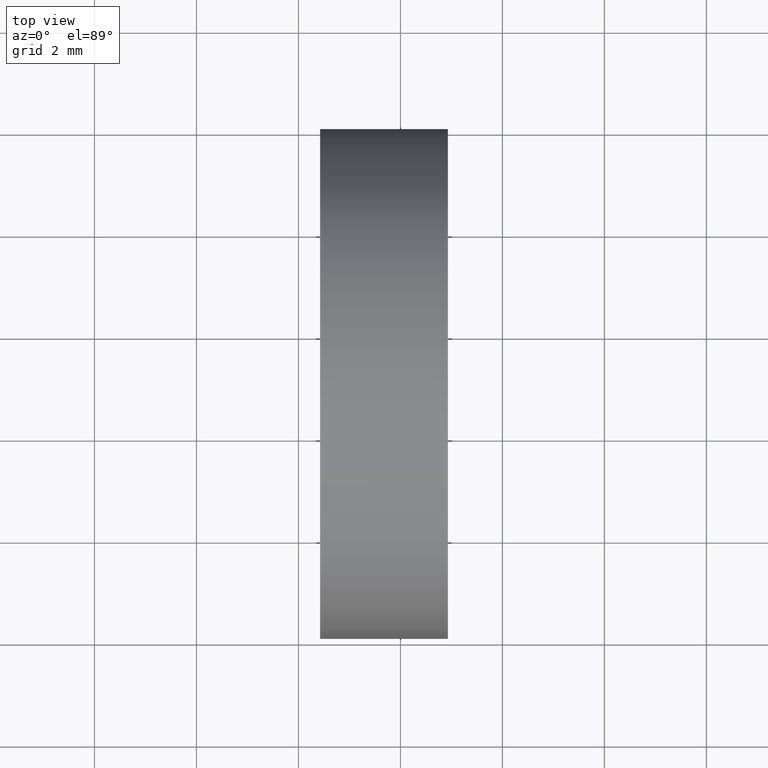
[diagram: clean part render]
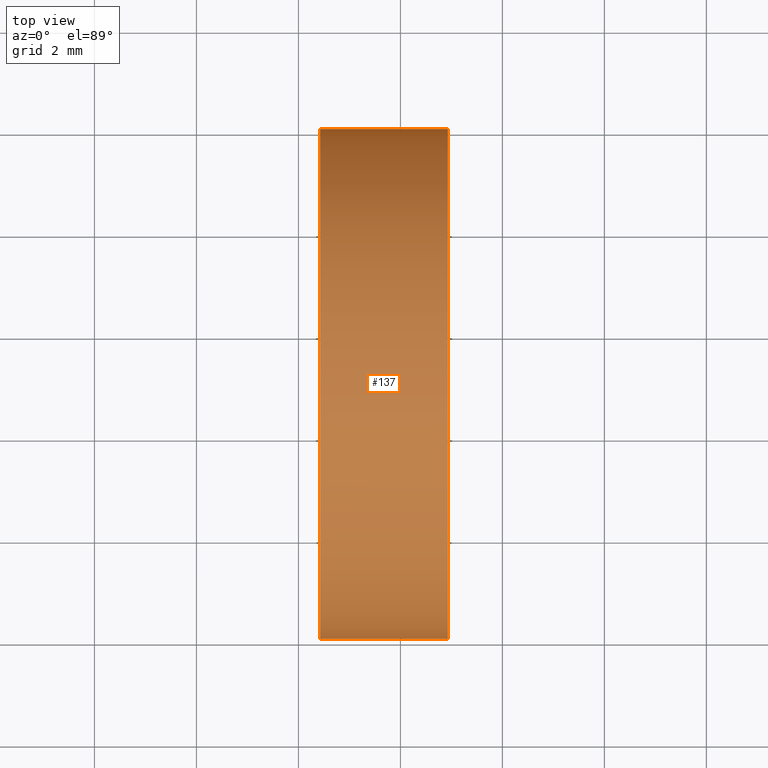
[diagram: same view with one face highlighted and labeled with its STEP entity id]
A machine part, top view. The second image highlights one B-rep face of the part: STEP entity #137.
In plain terms, the highlighted cylindrical surface (partial cylindrical patch) has radius 5 mm, axis along (-1, 0, -0).
Its self-contained STEP definition (entity closure, byte-faithful):
#4 = DIRECTION ( 'NONE',  ( 0.0000000000000000000, -1.000000000000000000, 0.0000000000000000000 ) ) ;
#6 = DIRECTION ( 'NONE',  ( 0.0000000000000000000, -1.000000000000000000, 0.0000000000000000000 ) ) ;
#8 = CARTESIAN_POINT ( 'NONE',  ( 21.50597511808246100, 18.03112609140304200, 6.123233995736768300E-016 ) ) ;
#13 = CIRCLE ( 'NONE', #61, 5.000000000000000900 ) ;
#14 = VERTEX_POINT ( 'NONE', #17 ) ;
#17 = CARTESIAN_POINT ( 'NONE',  ( 24.93179112749126200, 8.031126091403027800, -6.123233995736775200E-016 ) ) ;
#21 = DIRECTION ( 'NONE',  ( 0.0000000000000000000, -1.000000000000000000, 0.0000000000000000000 ) ) ;
#25 = VERTEX_POINT ( 'NONE', #150 ) ;
#28 = CARTESIAN_POINT ( 'NONE',  ( 21.50597511808246100, 13.03112609140304200, 0.0000000000000000000 ) ) ;
#33 = CARTESIAN_POINT ( 'NONE',  ( 22.42423205362066000, 8.031126091403040200, 0.0000000000000000000 ) ) ;
#39 = VECTOR ( 'NONE', #78, 1000.000000000000000 ) ;
#41 = EDGE_LOOP ( 'NONE', ( #57, #165, #120, #117 ) ) ;
#42 = CARTESIAN_POINT ( 'NONE',  ( 21.50597511808246100, 8.031126091403040200, 0.0000000000000000000 ) ) ;
#43 = AXIS2_PLACEMENT_3D ( 'NONE', #156, #102, #6 ) ;
#54 = DIRECTION ( 'NONE',  ( -1.000000000000000000, 3.159171411554934600E-016, -0.0000000000000000000 ) ) ;
#57 = ORIENTED_EDGE ( 'NONE', *, *, #84, .T. ) ;
#61 = AXIS2_PLACEMENT_3D ( 'NONE', #90, #54, #4 ) ;
#63 = CIRCLE ( 'NONE', #43, 5.000000000000002700 ) ;
#66 = DIRECTION ( 'NONE',  ( -1.000000000000000000, 3.159171411554934600E-016, -0.0000000000000000000 ) ) ;
#78 = DIRECTION ( 'NONE',  ( -1.000000000000000000, 3.159171411554934600E-016, -0.0000000000000000000 ) ) ;
#79 = CARTESIAN_POINT ( 'NONE',  ( 22.42423205362066000, 18.03112609140304200, 6.123233995736768300E-016 ) ) ;
#84 = EDGE_CURVE ( 'NONE', #14, #25, #63, .T. ) ;
#85 = VERTEX_POINT ( 'NONE', #33 ) ;
#86 = DIRECTION ( 'NONE',  ( -1.000000000000000000, 3.159171411554934600E-016, -0.0000000000000000000 ) ) ;
#90 = CARTESIAN_POINT ( 'NONE',  ( 22.42423205362066000, 13.03112609140304200, 0.0000000000000000000 ) ) ;
#98 = CYLINDRICAL_SURFACE ( 'NONE', #155, 5.000000000000000900 ) ;
#102 = DIRECTION ( 'NONE',  ( -1.000000000000000000, 3.159171411554934600E-016, -0.0000000000000000000 ) ) ;
#106 = EDGE_CURVE ( 'NONE', #85, #112, #13, .T. ) ;
#108 = LINE ( 'NONE', #8, #159 ) ;
#112 = VERTEX_POINT ( 'NONE', #79 ) ;
#117 = ORIENTED_EDGE ( 'NONE', *, *, #148, .F. ) ;
#119 = EDGE_CURVE ( 'NONE', #25, #112, #108, .T. ) ;
#120 = ORIENTED_EDGE ( 'NONE', *, *, #106, .F. ) ;
#135 = FACE_OUTER_BOUND ( 'NONE', #41, .T. ) ;
#137 = ADVANCED_FACE ( 'NONE', ( #135 ), #98, .T. ) ;
#148 = EDGE_CURVE ( 'NONE', #14, #85, #162, .T. ) ;
#150 = CARTESIAN_POINT ( 'NONE',  ( 24.93179112749126600, 18.03112609140304900, 0.0000000000000000000 ) ) ;
#155 = AXIS2_PLACEMENT_3D ( 'NONE', #28, #66, #21 ) ;
#156 = CARTESIAN_POINT ( 'NONE',  ( 24.93179112749126200, 13.03112609140304000, 0.0000000000000000000 ) ) ;
#159 = VECTOR ( 'NONE', #86, 1000.000000000000000 ) ;
#162 = LINE ( 'NONE', #42, #39 ) ;
#165 = ORIENTED_EDGE ( 'NONE', *, *, #119, .T. ) ;